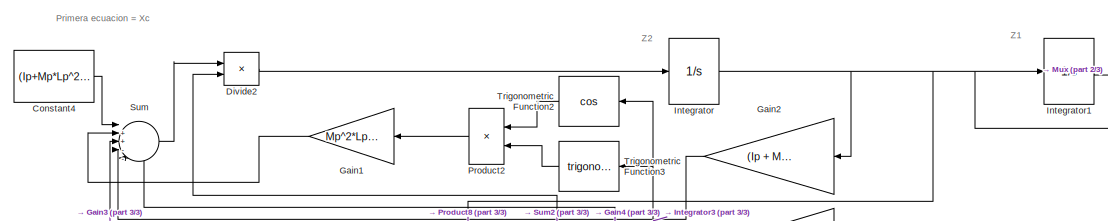
[diagram: root canvas - part 1/3, top center region]
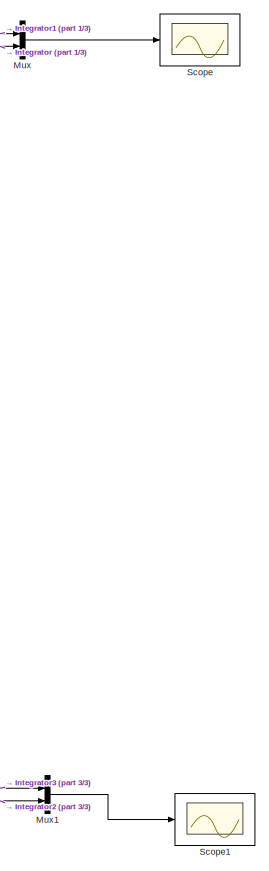
[diagram: root canvas - part 2/3, right side, full height]
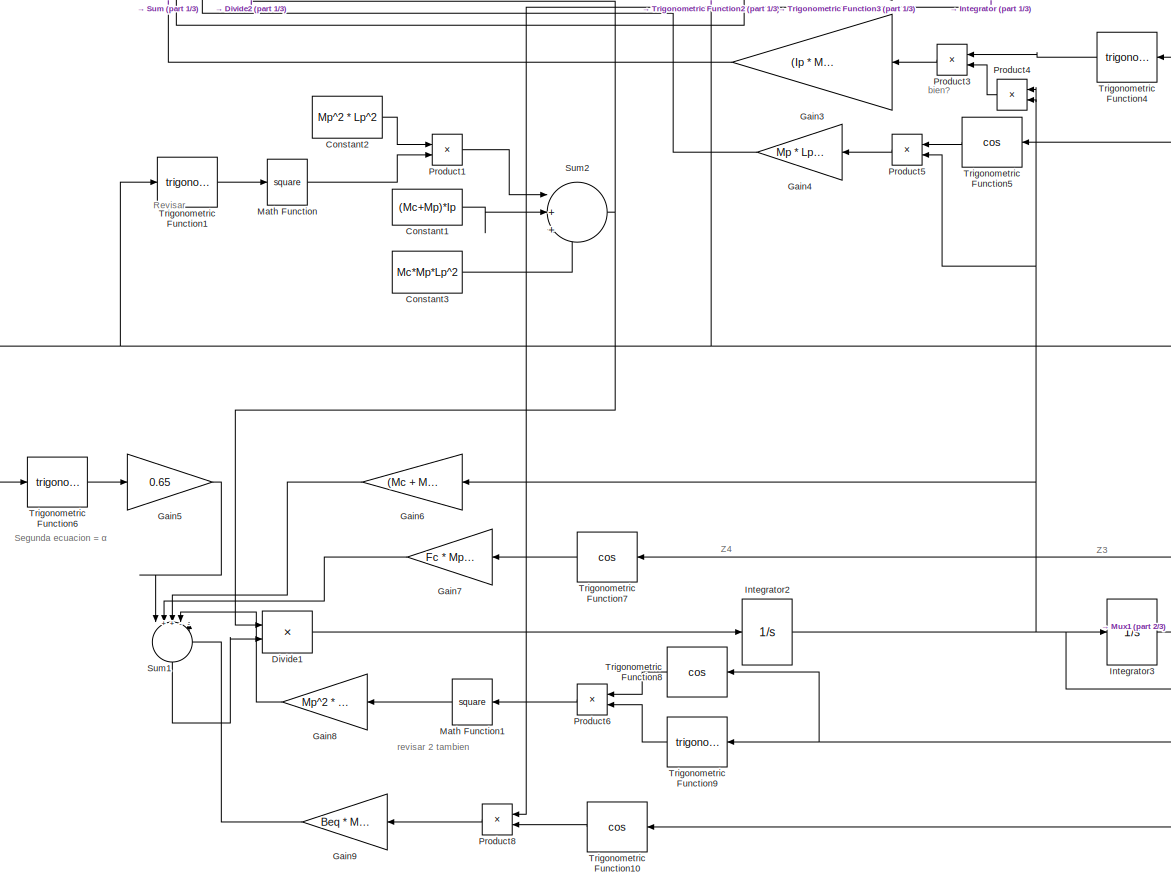
[diagram: root canvas - part 3/3, most of the canvas]
MODEL slx_c312c69e2019
KIND model
CONFIG AbsTol = auto
CONFIG EnableMultiTasking = off
CONFIG FixedStep = auto
CONFIG InitFcn = Ip=0.0079;\nMc=0.7031;\nLp=0.3302;\nMp=0.23;\nBeq=4.3;\ng=9.81;\nBp=0.0024;\nFc=0;
CONFIG MaxStep = auto
CONFIG MinStep = auto
CONFIG RelTol = 1e-3
CONFIG SampleTimeConstraint = Unconstrained
CONFIG SolverName = VariableStepAuto
CONFIG StartTime = 0.0
CONFIG StopTime = 10
BLOCK [Constant] Constant1
  Value = (Mc+Mp)*Ip
BLOCK [Constant] Constant2
  Value = Mp^2 * Lp^2
BLOCK [Constant] Constant3
  Value = Mc*Mp*Lp^2
BLOCK [Constant] Constant4
  Value = (Ip+Mp*Lp^2)*Fc
BLOCK [Product] Divide1
  Inputs = /*
BLOCK [Product] Divide2
  Inputs = */
BLOCK [Gain] Gain1
  Gain = Mp^2*Lp^2*g
  NameLocation = top
BLOCK [Gain] Gain2
  Gain = (Ip + Mp * Lp^2) * Beq
  NameLocation = top
BLOCK [Gain] Gain3
  Gain = (Ip * Mp * Lp - Mp^2 * Lp^3)
  NameLocation = top
BLOCK [Gain] Gain4
  Gain = Mp * Lp * Bp
  NameLocation = top
BLOCK [Gain] Gain5
  Gain = 0.65
BLOCK [Gain] Gain6
  Gain = (Mc + Mp) * Bp
  NameLocation = top
BLOCK [Gain] Gain7
  Gain = Fc * Mp * Lp
  NameLocation = top
BLOCK [Gain] Gain8
  Gain = Mp^2 * Lp^2
  NameLocation = top
BLOCK [Gain] Gain9
  Gain = Beq * Mp * Lp
  NameLocation = top
BLOCK [Integrator] Integrator
BLOCK [Integrator] Integrator1
BLOCK [Integrator] Integrator2
BLOCK [Integrator] Integrator3
  InitialCondition = 1 * pi/180
BLOCK [Math] Math Function
  Operator = square
BLOCK [Math] Math Function1
  NameLocation = top
  Operator = square
BLOCK [Mux] Mux
  DisplayOption = bar
  Inputs = 2
BLOCK [Mux] Mux1
  DisplayOption = bar
  Inputs = 2
BLOCK [Product] Product1
BLOCK [Product] Product2
  NameLocation = top
BLOCK [Product] Product3
  NameLocation = top
BLOCK [Product] Product4
  NameLocation = top
BLOCK [Product] Product5
  NameLocation = top
BLOCK [Product] Product6
  NameLocation = top
BLOCK [Product] Product8
  NameLocation = top
BLOCK [Scope] Scope
  Floating = off
  NumInputPorts = 1
  ScopeSpecificationString = Simulink.scopes.TimeScopeBlockCfg('CurrentConfiguration', extmgr.ConfigurationSet(extmgr.Configuration('Core','General UI',true),extmgr.Configuration('Core','Source UI',true),extmgr.Configuration('Sources','WiredSimulink',true),extmgr.Configuration('Visuals','Time Domain',true,'SerializedDisplays',{struct('MinYLimReal','-0.97947','MaxYLimReal','1.07195','YLabelReal','','MinYLimMag','0.00000','MaxY...<+1462ch>
BLOCK [Scope] Scope1
  Floating = off
  NumInputPorts = 1
  ScopeSpecificationString = Simulink.scopes.TimeScopeBlockCfg('CurrentConfiguration', extmgr.ConfigurationSet(extmgr.Configuration('Core','General UI',true),extmgr.Configuration('Core','Source UI',true),extmgr.Configuration('Sources','WiredSimulink',true,'DataLoggingVariableName','ScopeData1'),extmgr.Configuration('Visuals','Time Domain',true,'SerializedDisplays',{struct('MinYLimReal','-12.34744','MaxYLimReal','111.12698','Y...<+1511ch>
BLOCK [Sum] Sum
  Inputs = |++---
BLOCK [Sum] Sum1
  Inputs = |++---
  NameLocation = left
BLOCK [Sum] Sum2
  Inputs = |+++
BLOCK [Trigonometry] Trigonometric Function1
BLOCK [Trigonometry] Trigonometric Function10
  NameLocation = top
  Operator = cos
BLOCK [Trigonometry] Trigonometric Function2
  NameLocation = top
  Operator = cos
BLOCK [Trigonometry] Trigonometric Function3
  NameLocation = top
BLOCK [Trigonometry] Trigonometric Function4
  NameLocation = top
BLOCK [Trigonometry] Trigonometric Function5
  NameLocation = top
  Operator = cos
BLOCK [Trigonometry] Trigonometric Function6
BLOCK [Trigonometry] Trigonometric Function7
  NameLocation = top
  Operator = cos
BLOCK [Trigonometry] Trigonometric Function8
  NameLocation = top
  Operator = cos
BLOCK [Trigonometry] Trigonometric Function9
  NameLocation = top
ANNOTATION (root): Primera ecuacion = Xc
ANNOTATION (root): Revisar
ANNOTATION (root): Segunda ecuacion = α
ANNOTATION (root): Z1
ANNOTATION (root): Z2
ANNOTATION (root): Z3
ANNOTATION (root): Z4
ANNOTATION (root): bien?
ANNOTATION (root): revisar 2 tambien
LINE Constant1:1 -> Sum2:2
LINE Constant2:1 -> Product1:1
LINE Constant3:1 -> Sum2:3
LINE Constant4:1 -> Sum:1
LINE Divide1:1 -> Integrator2:1
LINE Divide2:1 -> Integrator:1
LINE Gain1:1 -> Sum:2
LINE Gain2:1 -> Sum:4
LINE Gain3:1 -> Sum:3
LINE Gain4:1 -> Sum:5
LINE Gain5:1 -> Sum1:1
LINE Gain6:1 -> Sum1:3
LINE Gain7:1 -> Sum1:2
LINE Gain8:1 -> Sum1:4
LINE Gain9:1 -> Sum1:5
LINE Integrator1:1 -> Mux:1
NET Integrator2:1 -> Gain6:1, Integrator3:1, Mux1:2, Product4:1, Product4:2, Product5:2
NET Integrator3:1 -> Mux1:1, Trigonometric Function10:1, Trigonometric Function1:1, Trigonometric Function2:1, Trigonometric Function3:1, Trigonometric Function4:1, Trigonometric Function5:1, Trigonometric Function6:1, Trigonometric Function7:1, Trigonometric Function8:1, Trigonometric Function9:1
NET Integrator:1 -> Gain2:1, Integrator1:1, Mux:2, Product8:1
LINE Math Function1:1 -> Gain8:1
LINE Math Function:1 -> Product1:2
LINE Mux1:1 -> Scope1:1
LINE Mux:1 -> Scope:1
LINE Product1:1 -> Sum2:1
LINE Product2:1 -> Gain1:1
LINE Product3:1 -> Gain3:1
LINE Product4:1 -> Product3:2
LINE Product5:1 -> Gain4:1
LINE Product6:1 -> Math Function1:1
LINE Product8:1 -> Gain9:1
LINE Sum1:1 -> Divide1:2
NET Sum2:1 -> Divide1:1, Divide2:2
LINE Sum:1 -> Divide2:1
LINE Trigonometric Function10:1 -> Product8:2
LINE Trigonometric Function1:1 -> Math Function:1
LINE Trigonometric Function2:1 -> Product2:1
LINE Trigonometric Function3:1 -> Product2:2
LINE Trigonometric Function4:1 -> Product3:1
LINE Trigonometric Function5:1 -> Product5:1
LINE Trigonometric Function6:1 -> Gain5:1
LINE Trigonometric Function7:1 -> Gain7:1
LINE Trigonometric Function8:1 -> Product6:1
LINE Trigonometric Function9:1 -> Product6:2
note: NET lines group one-source signal fan-out (src -> all destinations, sorted); 1:1 wires keep LINE
